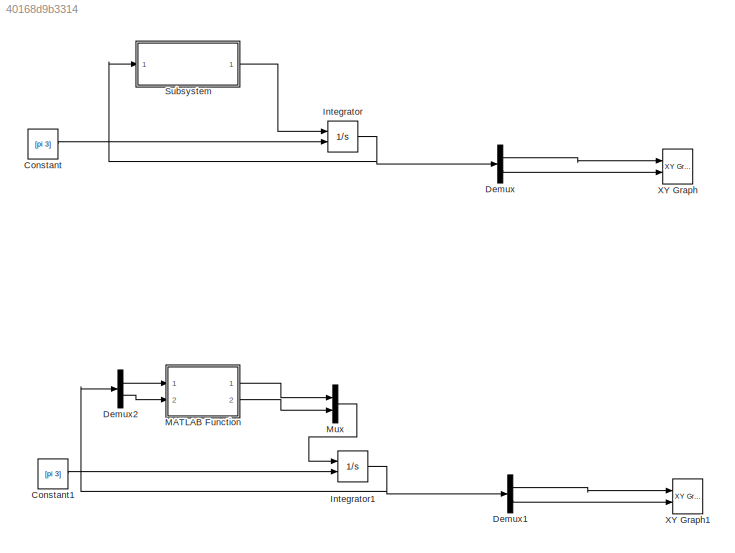
MODEL slx_40168d9b3314
KIND model
CONFIG AbsTol = auto
CONFIG EnableMultiTasking = off
CONFIG FixedStep = auto
CONFIG MaxStep = auto
CONFIG MinStep = auto
CONFIG RelTol = 1e-3
CONFIG SampleTimeConstraint = Unconstrained
CONFIG SolverName = VariableStepAuto
CONFIG StartTime = 0.0
CONFIG StopTime = 10.0
BLOCK [Constant] Constant
  Value = [pi 3]
BLOCK [Constant] Constant1
  Value = [pi 3]
BLOCK [Demux] Demux
  Outputs = 2
  Ports = [1, 2]
BLOCK [Demux] Demux1
  Outputs = 2
  Ports = [1, 2]
BLOCK [Demux] Demux2
  Outputs = 2
  Ports = [1, 2]
BLOCK [Integrator] Integrator
  InitialConditionSource = external
  Ports = [2, 1]
BLOCK [Integrator] Integrator1
  InitialConditionSource = external
  Ports = [2, 1]
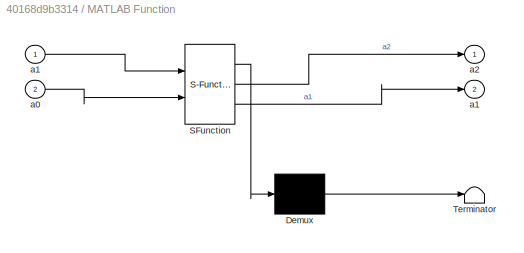
BLOCK [SubSystem] MATLAB Function
  ErrorFcn = Stateflow.Translate.translate
  PermitHierarchicalResolution = ExplicitOnly
  Ports = [2, 2]
  RequestExecContextInheritance = off
  SFBlockType = MATLAB Function
  TreatAsAtomicUnit = on
BLOCK [Demux] MATLAB Function/ Demux 
  Outputs = 1
  Ports = [1, 1]
BLOCK [S-Function] MATLAB Function/ SFunction 
  EnableBusSupport = on
  FunctionName = sf_sfun
  PortCounts = [2 3]
  Ports = [2, 3]
  SFcnIsStateOwnerBlock = off
  SFunctionDeploymentMode = off
  Tag = Stateflow S-Function 2
BLOCK [Terminator] MATLAB Function/ Terminator 
BLOCK [Inport] MATLAB Function/a0
  Port = 2
BLOCK [Outport] MATLAB Function/a1
  Port = 2
BLOCK [Inport] MATLAB Function/a1 
BLOCK [Outport] MATLAB Function/a2
BLOCK [Mux] Mux
  DisplayOption = bar
  Inputs = 2
  Ports = [2, 1]
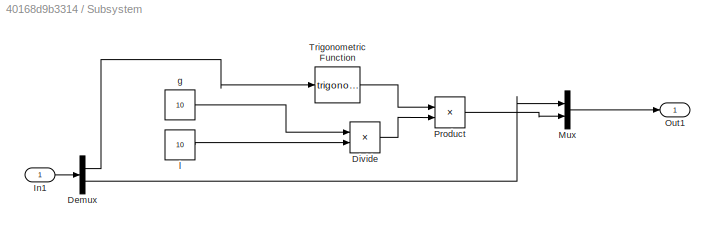
BLOCK [SubSystem] Subsystem
  Ports = [1, 1]
  RequestExecContextInheritance = off
BLOCK [Demux] Subsystem/Demux
  Outputs = 2
  Ports = [1, 2]
BLOCK [Product] Subsystem/Divide
  Inputs = */
  Ports = [2, 1]
BLOCK [Inport] Subsystem/In1
BLOCK [Mux] Subsystem/Mux
  DisplayOption = bar
  Inputs = 2
  Ports = [2, 1]
BLOCK [Outport] Subsystem/Out1
BLOCK [Product] Subsystem/Product
  Ports = [2, 1]
BLOCK [Trigonometry] Subsystem/Trigonometric Function
  Ports = [1, 1]
BLOCK [Constant] Subsystem/g
  Value = 10
BLOCK [Constant] Subsystem/l
  Value = 10
BLOCK [Reference] XY Graph  REF=simulink/Sinks/XY Graph
  Ports = [2]
  SourceBlock = simulink/Sinks/XY Graph
  SourceProductBaseCode = SL
  SourceType = XY scope.
BLOCK [Reference] XY Graph1  REF=simulink/Sinks/XY Graph
  Ports = [2]
  SourceBlock = simulink/Sinks/XY Graph
  SourceProductBaseCode = SL
  SourceType = XY scope.
LINE Constant1:1 -> Integrator1:2
LINE Constant:1 -> Integrator:2
LINE Demux1:1 -> XY Graph1:1
LINE Demux1:2 -> XY Graph1:2
LINE Demux2:1 -> MATLAB Function:1
LINE Demux2:2 -> MATLAB Function:2
LINE Demux:1 -> XY Graph:1
LINE Demux:2 -> XY Graph:2
NET Integrator1:1 -> Demux1:1, Demux2:1
NET Integrator:1 -> Demux:1, Subsystem:1
LINE MATLAB Function:1 -> Mux:1
LINE MATLAB Function:2 -> Mux:2
LINE Mux:1 -> Integrator1:1
LINE Subsystem/Demux:1 -> Subsystem/Trigonometric Function:1
LINE Subsystem/Demux:2 -> Subsystem/Mux:1
LINE Subsystem/Divide:1 -> Subsystem/Product:2
LINE Subsystem/In1:1 -> Subsystem/Demux:1
LINE Subsystem/Mux:1 -> Subsystem/Out1:1
LINE Subsystem/Product:1 -> Subsystem/Mux:2
LINE Subsystem/Trigonometric Function:1 -> Subsystem/Product:1
LINE Subsystem/g:1 -> Subsystem/Divide:1
LINE Subsystem/l:1 -> Subsystem/Divide:2
LINE Subsystem:1 -> Integrator:1
note: NET lines group one-source signal fan-out (src -> all destinations, sorted); 1:1 wires keep LINE
CHART MATLAB Function states=1 transitions=1
  STATE_LABEL 'eML_blk_kernel()'
  STATE_LABEL 'SCRIPT:\nfunction [a2,a1] = f(a1,a0)\n\na2 = sin(a0);'
CHART  states=0 transitions=0
